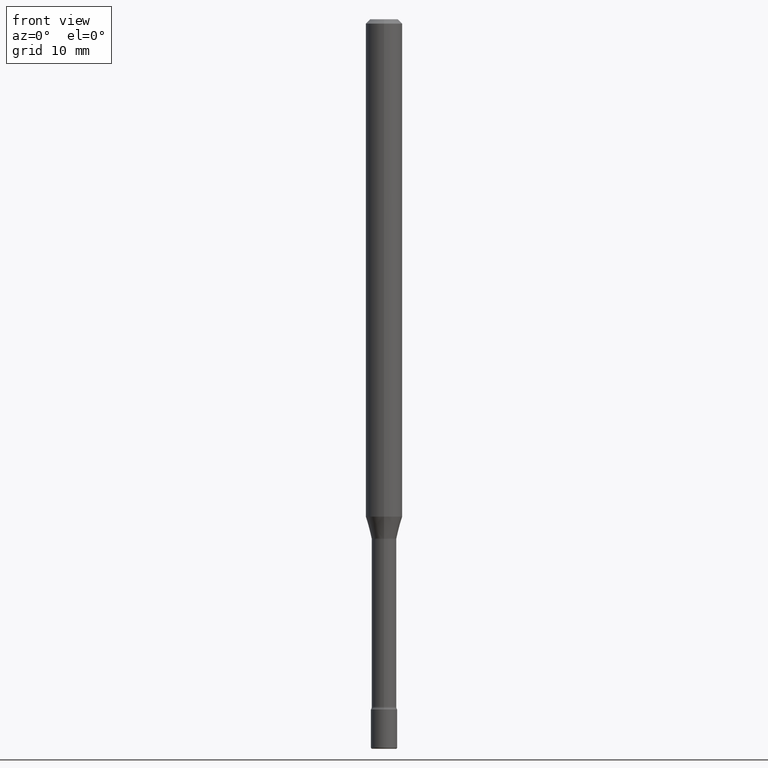
[diagram: clean part render]
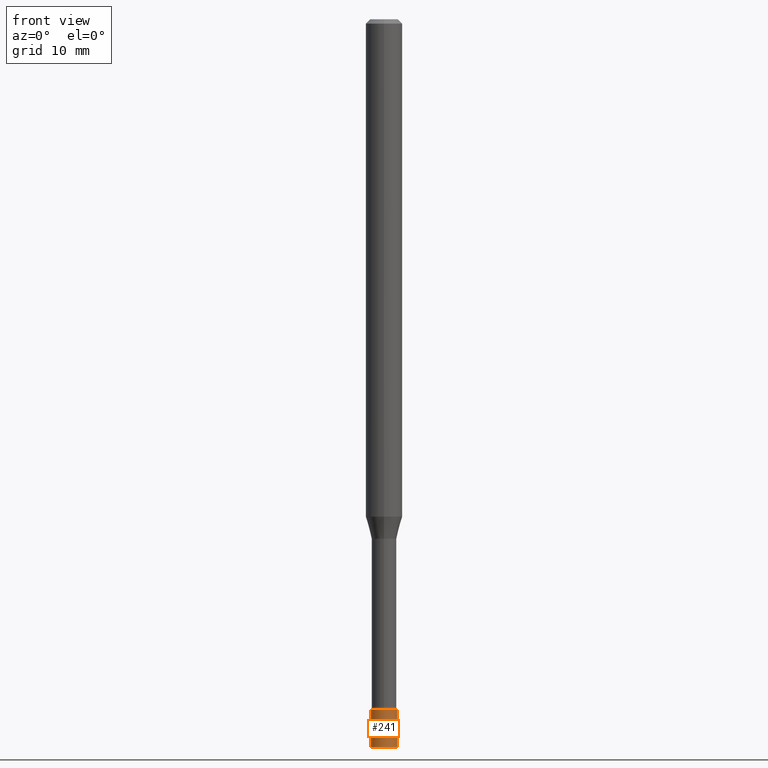
[diagram: same view with one face highlighted and labeled with its STEP entity id]
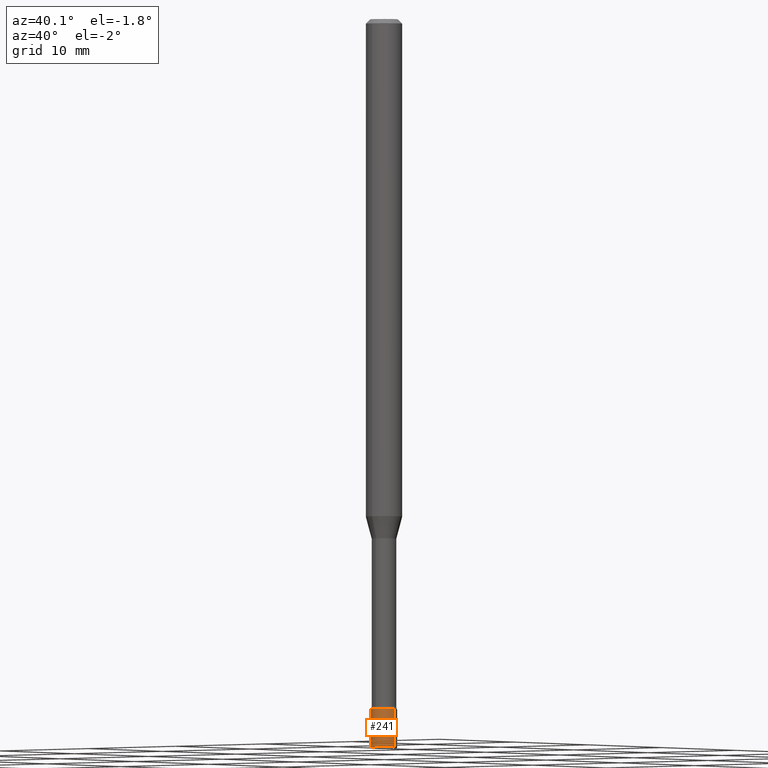
[diagram: same view with one face highlighted and labeled with its STEP entity id]
A machine part, front view. The second image highlights one B-rep face of the part: STEP entity #241.
A second angle (auxiliary view) of the same face is appended — the face is thin or edge-on in the first view.
In plain terms, the highlighted cylindrical surface (edge-blend (fillet) strip) has radius 1.143 mm, axis along (-0, 0, 1).
Its self-contained STEP definition (entity closure, byte-faithful):
#19 = DIRECTION ( 'NONE',  ( 1.000000000000000000, -6.982962677686266711E-15, 4.876176775795935793E-29 ) ) ;
#38 = EDGE_CURVE ( 'NONE', #386, #79, #473, .T. ) ;
#79 = VERTEX_POINT ( 'NONE', #137 ) ;
#83 = ORIENTED_EDGE ( 'NONE', *, *, #524, .T. ) ;
#84 = DIRECTION ( 'NONE',  ( -2.445468806185136877E-29, 3.491481338843145188E-15, 1.000000000000000000 ) ) ;
#85 = VECTOR ( 'NONE', #563, 39.37007874015748143 ) ;
#112 = VECTOR ( 'NONE', #84, 39.37007874015748143 ) ;
#137 = CARTESIAN_POINT ( 'NONE',  ( 0.04499999999999999833, -8.571586686859921733E-15, -2.365000000000000213 ) ) ;
#151 = CARTESIAN_POINT ( 'NONE',  ( 0.000000000000000000, 0.000000000000000000, 0.000000000000000000 ) ) ;
#159 = CARTESIAN_POINT ( 'NONE',  ( -0.04499999999999999833, -8.164555422296798820E-15, -2.365000000000000213 ) ) ;
#188 = FACE_OUTER_BOUND ( 'NONE', #564, .T. ) ;
#195 = CIRCLE ( 'NONE', #272, 0.04500000000000000527 ) ;
#219 = LINE ( 'NONE', #392, #85 ) ;
#227 = CARTESIAN_POINT ( 'NONE',  ( -0.04499999999999989425, -8.391501709321603750E-15, -2.495000000000000107 ) ) ;
#241 = ADVANCED_FACE ( 'NONE', ( #188 ), #469, .T. ) ;
#270 = CARTESIAN_POINT ( 'NONE',  ( 5.783533726627847872E-29, -8.257353366364040046E-15, -2.365000000000000213 ) ) ;
#272 = AXIS2_PLACEMENT_3D ( 'NONE', #532, #316, #488 ) ;
#301 = LINE ( 'NONE', #482, #112 ) ;
#313 = DIRECTION ( 'NONE',  ( -2.445468806185136597E-29, 3.491481338843145583E-15, 1.000000000000000000 ) ) ;
#316 = DIRECTION ( 'NONE',  ( -2.445468806185136597E-29, 3.491481338843145583E-15, 1.000000000000000000 ) ) ;
#323 = DIRECTION ( 'NONE',  ( 1.000000000000000000, -6.982962677686269077E-15, 0.000000000000000000 ) ) ;
#347 = ORIENTED_EDGE ( 'NONE', *, *, #373, .T. ) ;
#373 = EDGE_CURVE ( 'NONE', #440, #79, #219, .T. ) ;
#385 = EDGE_CURVE ( 'NONE', #478, #386, #301, .T. ) ;
#386 = VERTEX_POINT ( 'NONE', #159 ) ;
#392 = CARTESIAN_POINT ( 'NONE',  ( 0.04499999999999999833, -3.142333204958819823E-16, 2.194279549108170967E-30 ) ) ;
#415 = ORIENTED_EDGE ( 'NONE', *, *, #385, .F. ) ;
#419 = AXIS2_PLACEMENT_3D ( 'NONE', #151, #516, #19 ) ;
#429 = ORIENTED_EDGE ( 'NONE', *, *, #38, .F. ) ;
#440 = VERTEX_POINT ( 'NONE', #492 ) ;
#469 = CYLINDRICAL_SURFACE ( 'NONE', #419, 0.04499999999999999833 ) ;
#473 = CIRCLE ( 'NONE', #490, 0.04499999999999999833 ) ;
#478 = VERTEX_POINT ( 'NONE', #227 ) ;
#482 = CARTESIAN_POINT ( 'NONE',  ( -0.04499999999999999833, 3.197442310920450718E-16, -2.213520790614707560E-30 ) ) ;
#488 = DIRECTION ( 'NONE',  ( 1.000000000000000000, -6.982962677686267499E-15, 0.000000000000000000 ) ) ;
#490 = AXIS2_PLACEMENT_3D ( 'NONE', #270, #313, #323 ) ;
#492 = CARTESIAN_POINT ( 'NONE',  ( 0.04499999999999989425, -9.025479260909530016E-15, -2.495000000000000107 ) ) ;
#516 = DIRECTION ( 'NONE',  ( -2.445468806185136597E-29, 3.491481338843145583E-15, 1.000000000000000000 ) ) ;
#524 = EDGE_CURVE ( 'NONE', #478, #440, #195, .T. ) ;
#532 = CARTESIAN_POINT ( 'NONE',  ( 6.101444671431915719E-29, -8.711245940413648329E-15, -2.495000000000000107 ) ) ;
#563 = DIRECTION ( 'NONE',  ( -2.445468806185136877E-29, 3.491481338843145188E-15, 1.000000000000000000 ) ) ;
#564 = EDGE_LOOP ( 'NONE', ( #415, #83, #347, #429 ) ) ;